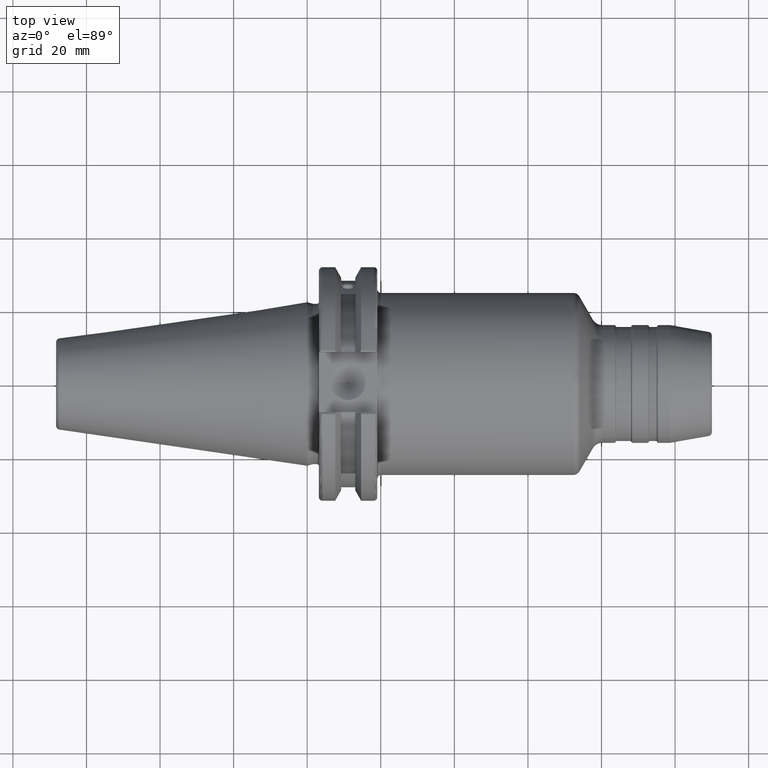
[diagram: clean part render]
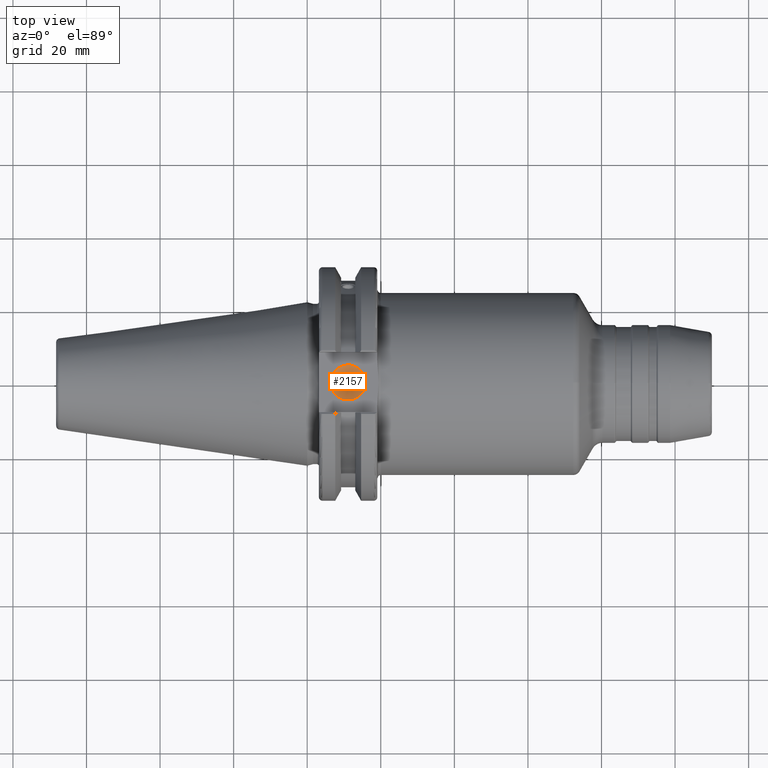
[diagram: same view with one face highlighted and labeled with its STEP entity id]
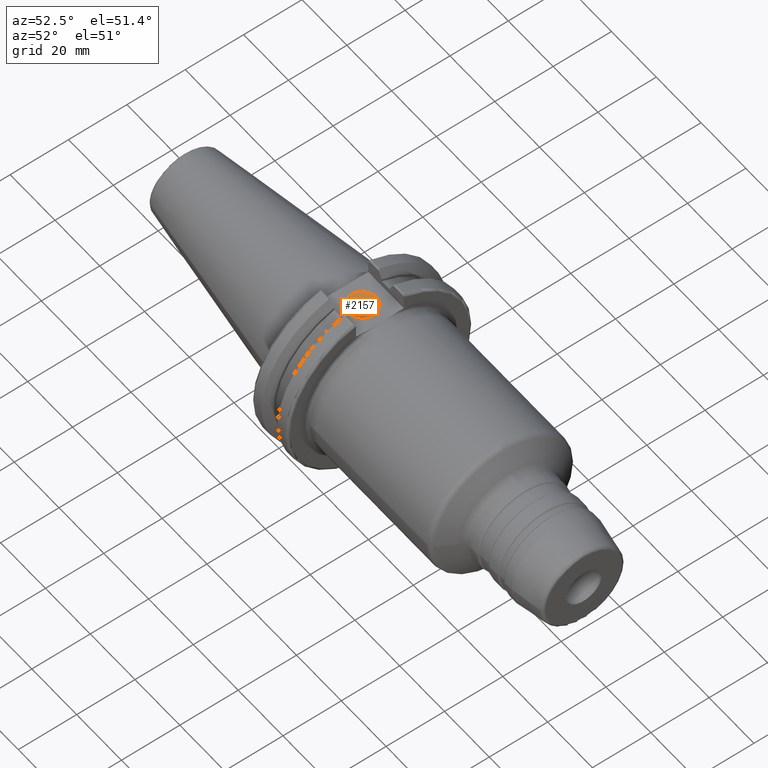
[diagram: same view with one face highlighted and labeled with its STEP entity id]
A machine part, top view. The second image highlights one B-rep face of the part: STEP entity #2157.
A second angle (auxiliary view) of the same face is appended — the face is thin or edge-on in the first view.
In plain terms, the highlighted conical surface has half-angle 59 deg.
Its self-contained STEP definition (entity closure, byte-faithful):
#115=CONICAL_SURFACE('',#2466,2.38125,1.02974425867665);
#258=FACE_OUTER_BOUND('',#377,.T.);
#377=EDGE_LOOP('',(#1945,#1946,#1947,#1948));
#485=LINE('',#4201,#579);
#579=VECTOR('',#3137,2.38125);
#749=CIRCLE('',#2467,4.7625);
#750=CIRCLE('',#2468,4.7625);
#998=VERTEX_POINT('',#4197);
#999=VERTEX_POINT('',#4198);
#1000=VERTEX_POINT('',#4200);
#1329=EDGE_CURVE('',#998,#999,#749,.T.);
#1330=EDGE_CURVE('',#999,#1000,#485,.T.);
#1331=EDGE_CURVE('',#999,#998,#750,.T.);
#1945=ORIENTED_EDGE('',*,*,#1329,.T.);
#1946=ORIENTED_EDGE('',*,*,#1330,.T.);
#1947=ORIENTED_EDGE('',*,*,#1330,.F.);
#1948=ORIENTED_EDGE('',*,*,#1331,.T.);
#2157=ADVANCED_FACE('',(#258),#115,.F.);
#2466=AXIS2_PLACEMENT_3D('',#4196,#3133,#3134);
#2467=AXIS2_PLACEMENT_3D('',#4199,#3135,#3136);
#2468=AXIS2_PLACEMENT_3D('',#4202,#3138,#3139);
#3133=DIRECTION('center_axis',(0.,0.,1.));
#3134=DIRECTION('ref_axis',(1.,0.,0.));
#3135=DIRECTION('center_axis',(0.,0.,1.));
#3136=DIRECTION('ref_axis',(1.,0.,0.));
#3137=DIRECTION('',(0.857167300702112,1.04972719113862E-16,-0.515038074910054));
#3138=DIRECTION('center_axis',(0.,0.,1.));
#3139=DIRECTION('ref_axis',(1.,0.,0.));
#4196=CARTESIAN_POINT('Origin',(11.1341,0.,23.1692006509406));
#4197=CARTESIAN_POINT('',(15.8966,0.,24.6));
#4198=CARTESIAN_POINT('',(6.3716,-5.83238038093927E-16,24.6));
#4199=CARTESIAN_POINT('Origin',(11.1341,0.,24.6));
#4200=CARTESIAN_POINT('',(11.1341,0.,21.7384013018812));
#4201=CARTESIAN_POINT('',(8.75285,-2.91619019046964E-16,23.1692006509406));
#4202=CARTESIAN_POINT('Origin',(11.1341,0.,24.6));